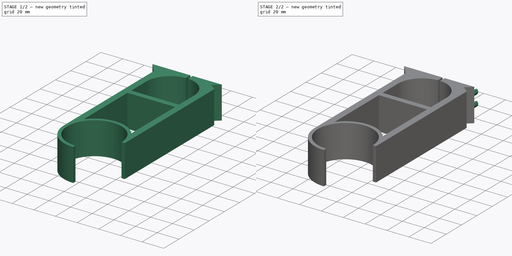
[diagram: build sequence overview — one tinted view per stage of 2, left to right]
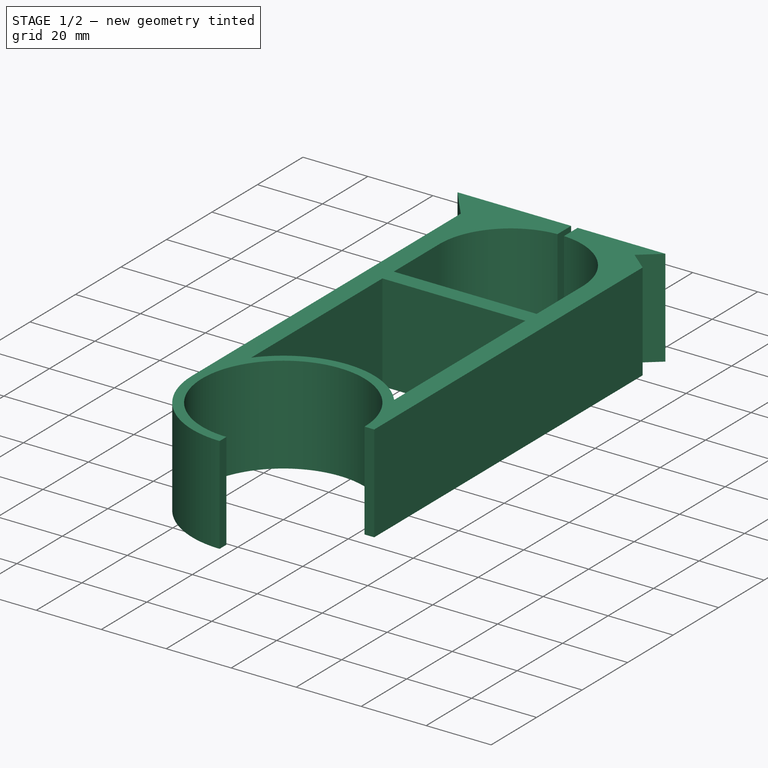
[diagram: stage 1 of 2 — iso view after this stage's code; geometry added in this stage tinted green]
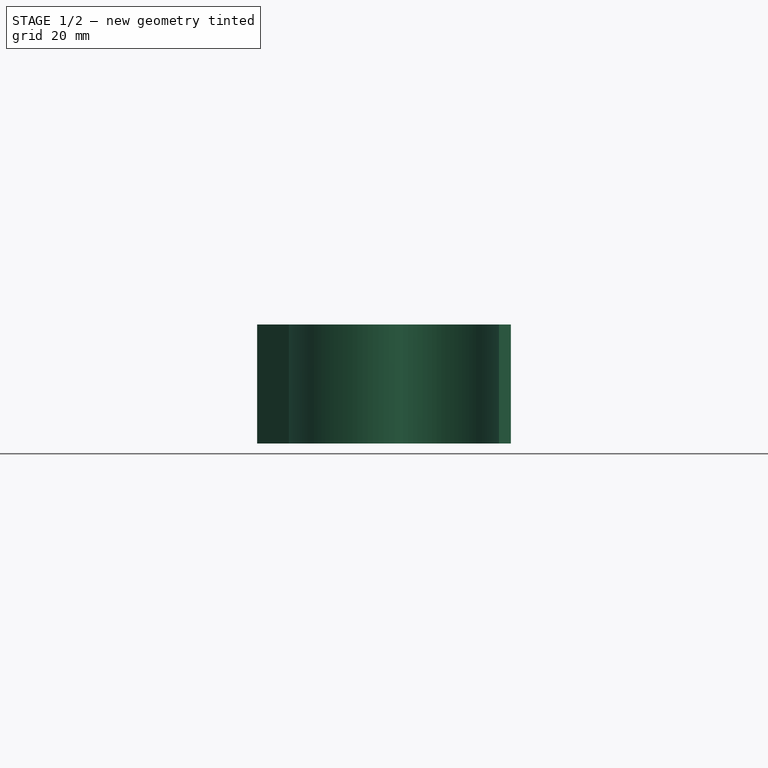
[diagram: stage 1 of 2 — front view after this stage's code; geometry added in this stage tinted green]
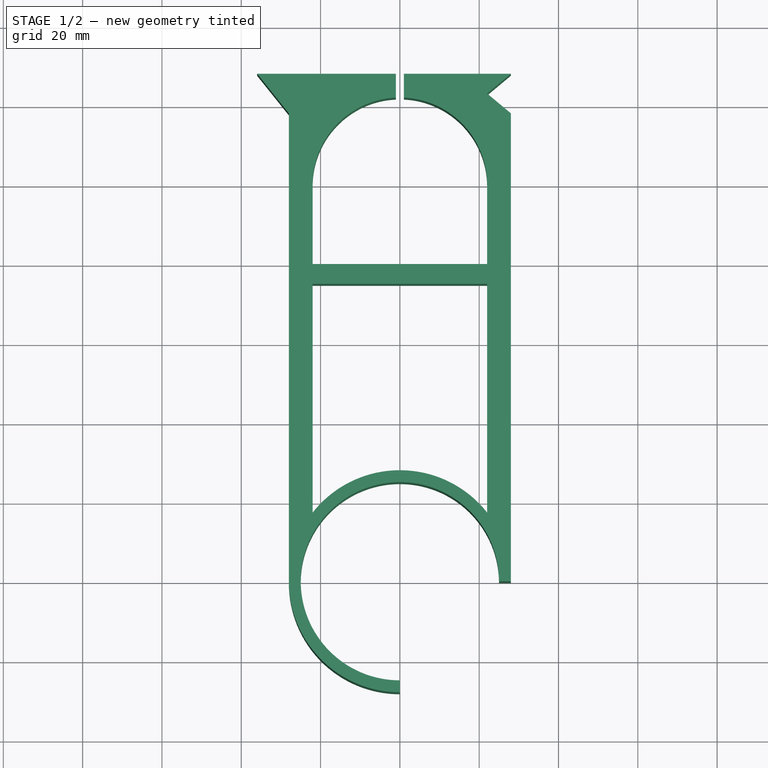
[diagram: stage 1 of 2 — top view after this stage's code; geometry added in this stage tinted green]
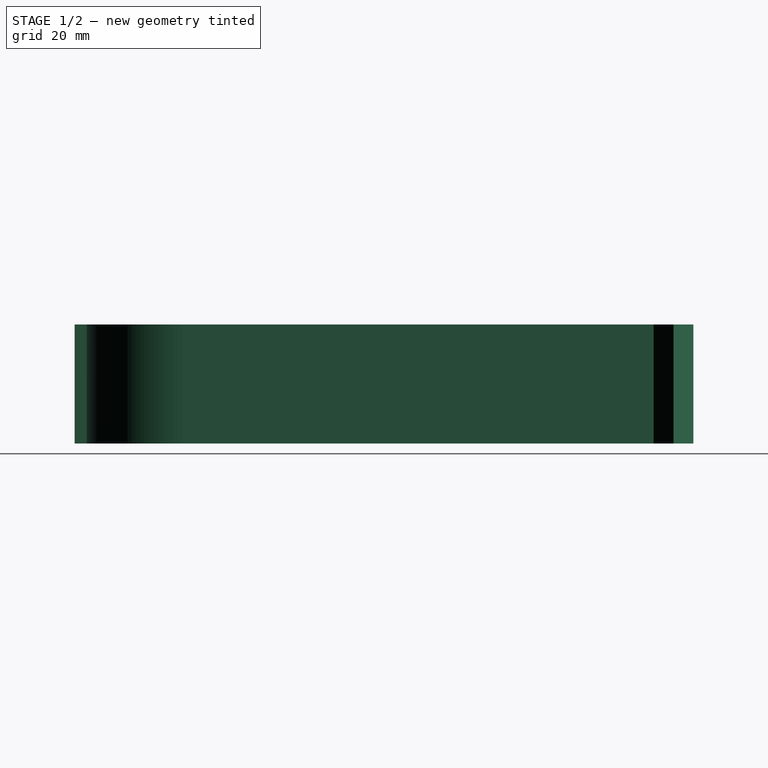
[diagram: stage 1 of 2 — right view after this stage's code; geometry added in this stage tinted green]
FCSTD DOCUMENT  (FreeCAD 0.20R29410 (Git))
Label: bikeBasketSupport
License: All rights reserved
LicenseURL: http://en.wikipedia.org/wiki/All_rights_reserved
objects: Sketcher::SketchObject×2, PartDesign::Pad×2, PartDesign::Body×1
note: 7 computed .brp shape members not serialized (recipe doc carries the construction recipe); baked Part::Feature solids carry a one-line shape summary decoded from their .brp

FEATURE [Sketcher::SketchObject] Sketch
  FullyConstrained = true
  MapMode = 5
  Support = -> [XY_Plane]
  sketch-geometry (24):
    g0: ArcOfCircle CenterX=0 CenterY=0 CenterZ=0 NormalX=0 NormalY=0 NormalZ=1 AngleXU=0 Radius=25 StartAngle=0 EndAngle=4.71239
    g1: ArcOfCircle CenterX=0 CenterY=0 CenterZ=0 NormalX=0 NormalY=0 NormalZ=1 AngleXU=0 Radius=28 StartAngle=0.666946 EndAngle=2.47465
    g2: LineSegment StartX=25 StartY=0 StartZ=0 EndX=28 EndY=0 EndZ=0
    g3: LineSegment StartX=-4.6e-15 StartY=-25 StartZ=0 EndX=-5.1e-15 EndY=-28 EndZ=0
    g4: LineSegment StartX=28 StartY=100 StartZ=0 EndX=28 EndY=0 EndZ=0
    g5: LineSegment StartX=22 StartY=100 StartZ=0 EndX=22 EndY=80 EndZ=0
    g6: LineSegment StartX=-28 StartY=100 StartZ=0 EndX=-28 EndY=1.41471e-05 EndZ=0
    g7: LineSegment StartX=-22 StartY=100 StartZ=0 EndX=-22 EndY=80 EndZ=0
    g8: ArcOfCircle CenterX=0 CenterY=0 CenterZ=0 NormalX=0 NormalY=0 NormalZ=1 AngleXU=0 Radius=28 StartAngle=3.14159 EndAngle=4.71239
    g9: ArcOfCircle CenterX=0 CenterY=100 CenterZ=0 NormalX=0 NormalY=0 NormalZ=1 AngleXU=0 Radius=22 StartAngle=0 EndAngle=1.52533
    g10: LineSegment StartX=-28 StartY=118 StartZ=0 EndX=-28 EndY=100 EndZ=0
    g11: LineSegment StartX=28 StartY=118 StartZ=0 EndX=28 EndY=100 EndZ=0
    g12: LineSegment StartX=-36 StartY=128 StartZ=0 EndX=-1 EndY=128 EndZ=0
    g13: LineSegment StartX=28 StartY=128 StartZ=0 EndX=22 EndY=123 EndZ=0
    g14: LineSegment StartX=22 StartY=123 StartZ=0 EndX=28 EndY=118 EndZ=0
    g15: LineSegment StartX=-36 StartY=128 StartZ=0 EndX=-28 EndY=118 EndZ=0
    g16: LineSegment StartX=-1 StartY=128 StartZ=0 EndX=-1 EndY=121.977 EndZ=0
    g17: LineSegment StartX=1 StartY=128 StartZ=0 EndX=1 EndY=121.977 EndZ=0
    g18: LineSegment StartX=1 StartY=128 StartZ=0 EndX=28 EndY=128 EndZ=0
    g19: ArcOfCircle CenterX=0 CenterY=100 CenterZ=0 NormalX=0 NormalY=0 NormalZ=1 AngleXU=0 Radius=22 StartAngle=1.61627 EndAngle=3.14159
    g20: LineSegment StartX=-22 StartY=75 StartZ=0 EndX=22 EndY=75 EndZ=0
    g21: LineSegment StartX=-22 StartY=80 StartZ=0 EndX=22 EndY=80 EndZ=0
    g22: LineSegment StartX=-22 StartY=75 StartZ=0 EndX=-22 EndY=17.3205 EndZ=0
    g23: LineSegment StartX=22 StartY=75 StartZ=0 EndX=22 EndY=17.3205 EndZ=0
  constraints (74):
    c: Coincident(g0,g-1)
    c: DistanceY(g0,g0) = 0
    c: DistanceX(g0,g0) = 0
    c: Radius(g0) = 25
    c: Coincident(g1,g0)
    c: DistanceY(g2,g0) = 0
    c: DistanceX(g8,g0) = 0
    c: Radius(g1) = 28
    c: Coincident(g2,g0)
    c: Coincident(g3,g8)
    c: Coincident(g3,g0)
    c: Coincident(g4,g2)
    c: Vertical(g4)
    c: Vertical(g5)
    c: DistanceY(g4,g4) = 100
    c: DistanceX(g0,g23) = 22
    c: Coincident(g1,g23)
    c: DistanceX(g0,g2) = 3
    c: Vertical(g6)
    c: Vertical(g7)
    c: DistanceY(g6,g6) = 100
    c: DistanceX(g6,g0) = 28
    c: DistanceX(g22,g0) = 22
    c: Equal(g1,g8)
    c: Coincident(g1,g22)
    c: Coincident(g8,g6)
    c: Coincident(g1,g8)
    c: DistanceY(g0,g9) = 100
    c: DistanceX(g0,g9) = 0
    c: Coincident(g19,g7)
    c: DistanceY(g9,g9) = 0
    c: Vertical(g10)
    c: Vertical(g11)
    c: Coincident(g11,g4)
    c: Coincident(g10,g6)
    c: DistanceY(g11,g11) = 18
    c: DistanceY(g7,g6) = 0
    c: DistanceY(g5,g4) = 0
    c: DistanceY(g10,g10) = 18
    c: Horizontal(g12)
    c: DistanceX(g12,g9) = 36
    c: DistanceX(g9,g18) = 28
    c: DistanceY(g9,g18) = 28
    c: Coincident(g14,g11)
    c: Coincident(g13,g18)
    c: Coincident(g13,g14)
    c: Coincident(g15,g12)
    c: Coincident(g15,g10)
    c: DistanceX(g13,g11) = 6
    c: DistanceY(g13,g18) = 5
    c: Vertical(g16)
    c: Vertical(g17)
    c: DistanceX(g9,g17) = 1
    c: DistanceX(g16,g9) = 1
    c: Coincident(g12,g16)
    c: Coincident(g18,g17)
    c: Equal(g9,g19)
    c: Coincident(g9,g17)
    c: Coincident(g19,g16)
    c: Coincident(g9,g19)
    c: Horizontal(g18)
    c: DistanceY(g9,g12) = 28
    c: Horizontal(g20)
    c: Horizontal(g21)
    c: DistanceY(g20,g9) = 25
    c: DistanceY(g21,g9) = 20
    c: Coincident(g7,g21)
    c: Coincident(g22,g20)
    c: Coincident(g5,g21)
    c: Coincident(g23,g20)
    c: Vertical(g23)
    c: Vertical(g22)
    c: DistanceX(g9,g5) = 22
    c: DistanceX(g7,g9) = 22
FEATURE [PartDesign::Pad] Pad
  Direction = (0,0,1)
  Length = 30
  Length2 = 10
  Profile = -> Sketch
  ReferenceAxis = -> Sketch [N_Axis]
  Type = 0
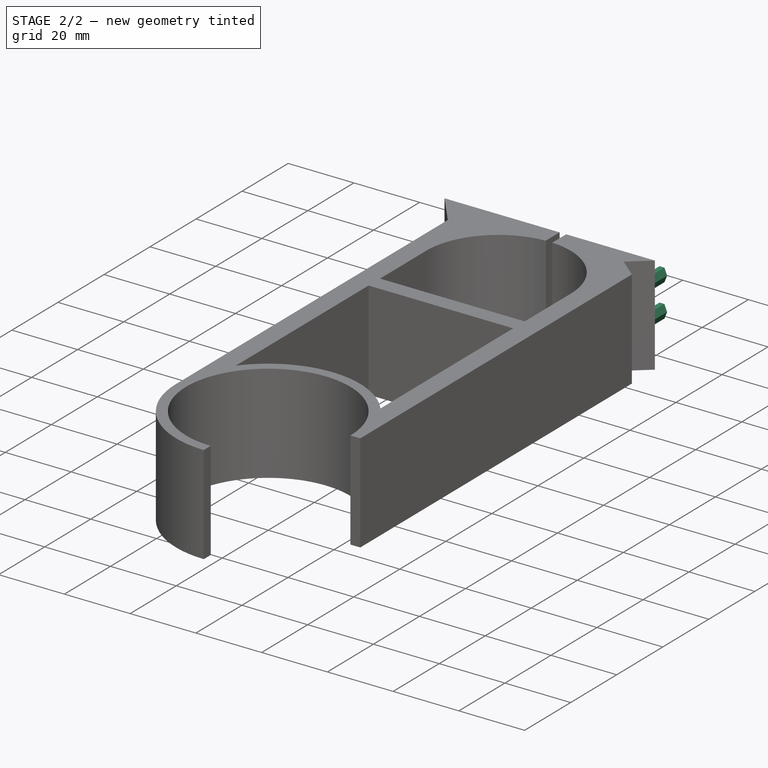
[diagram: stage 2 of 2 — iso view after this stage's code; geometry added in this stage tinted green]
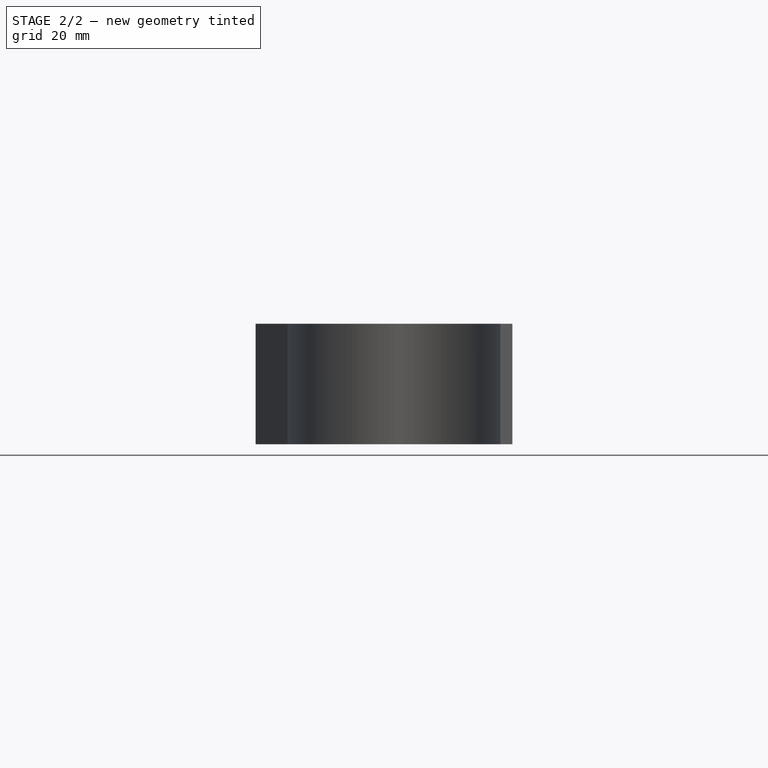
[diagram: stage 2 of 2 — front view after this stage's code; geometry added in this stage tinted green]
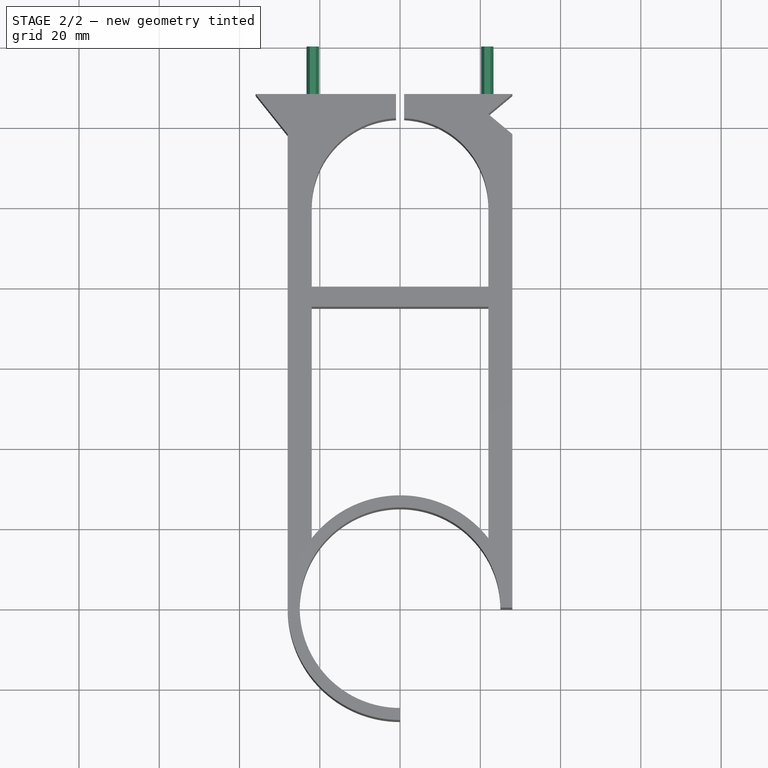
[diagram: stage 2 of 2 — top view after this stage's code; geometry added in this stage tinted green]
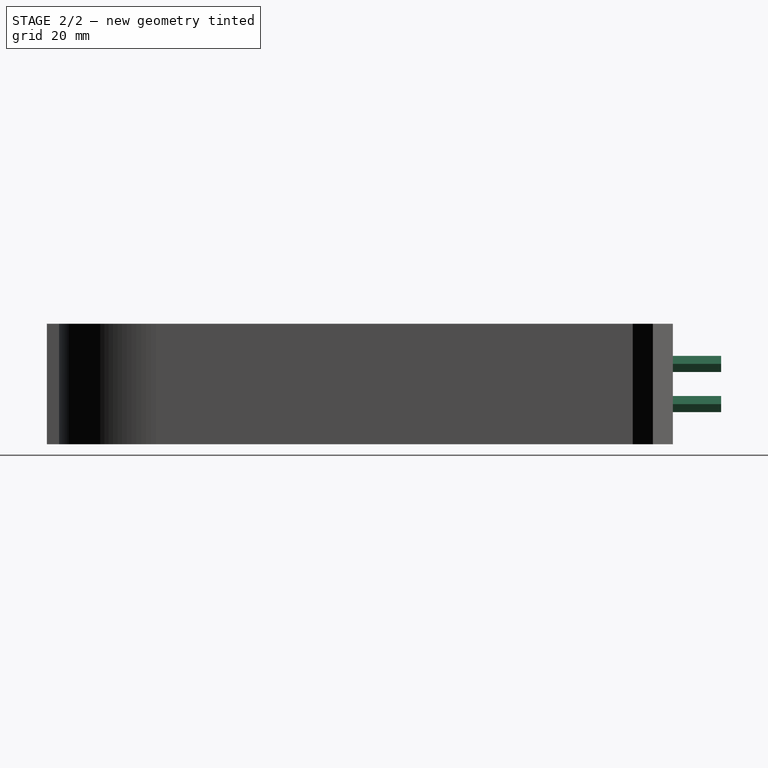
[diagram: stage 2 of 2 — right view after this stage's code; geometry added in this stage tinted green]
FEATURE [Sketcher::SketchObject] Sketch001
  FullyConstrained = true
  MapMode = 5
  Placement = pos=(0,128,0) rot=(0,0.707107,0.707107;3.14159rad)
  Support = -> [Pad]
  sketch-geometry (24):
    g0: LineSegment StartX=-22.5 StartY=12 StartZ=0 EndX=-23.3 EndY=10 EndZ=0
    g1: LineSegment StartX=-23.3 StartY=10 StartZ=0 EndX=-22.5 EndY=8 EndZ=0
    g2: LineSegment StartX=-22.5 StartY=8 StartZ=0 EndX=-21 EndY=8 EndZ=0
    g3: LineSegment StartX=-21 StartY=8 StartZ=0 EndX=-20.2 EndY=10 EndZ=0
    g4: LineSegment StartX=-20.2 StartY=10 StartZ=0 EndX=-21 EndY=12 EndZ=0
    g5: LineSegment StartX=-22.5 StartY=12 StartZ=0 EndX=-21 EndY=12 EndZ=0
    g6: LineSegment StartX=-22.5 StartY=22 StartZ=0 EndX=-23.3 EndY=20 EndZ=0
    g7: LineSegment StartX=-23.3 StartY=20 StartZ=0 EndX=-22.5 EndY=18 EndZ=0
    g8: LineSegment StartX=-22.5 StartY=18 StartZ=0 EndX=-21 EndY=18 EndZ=0
    g9: LineSegment StartX=-21 StartY=18 StartZ=0 EndX=-20.2 EndY=20 EndZ=0
    g10: LineSegment StartX=-20.2 StartY=20 StartZ=0 EndX=-21 EndY=22 EndZ=0
    g11: LineSegment StartX=-22.5 StartY=22 StartZ=0 EndX=-21 EndY=22 EndZ=0
    g12: LineSegment StartX=21 StartY=12 StartZ=0 EndX=20.2 EndY=10 EndZ=0
    g13: LineSegment StartX=20.2 StartY=10 StartZ=0 EndX=21 EndY=8 EndZ=0
    g14: LineSegment StartX=21 StartY=8 StartZ=0 EndX=22.5 EndY=8 EndZ=0
    g15: LineSegment StartX=22.5 StartY=8 StartZ=0 EndX=23.3 EndY=10 EndZ=0
    g16: LineSegment StartX=23.3 StartY=10 StartZ=0 EndX=22.5 EndY=12 EndZ=0
    g17: LineSegment StartX=21 StartY=12 StartZ=0 EndX=22.5 EndY=12 EndZ=0
    g18: LineSegment StartX=21 StartY=22 StartZ=0 EndX=20.2 EndY=20 EndZ=0
    g19: LineSegment StartX=20.2 StartY=20 StartZ=0 EndX=21 EndY=18 EndZ=0
    g20: LineSegment StartX=21 StartY=18 StartZ=0 EndX=22.5 EndY=18 EndZ=0
    g21: LineSegment StartX=22.5 StartY=18 StartZ=0 EndX=23.3 EndY=20 EndZ=0
    g22: LineSegment StartX=23.3 StartY=20 StartZ=0 EndX=22.5 EndY=22 EndZ=0
    g23: LineSegment StartX=21 StartY=22 StartZ=0 EndX=22.5 EndY=22 EndZ=0
  constraints (72):
    c: Horizontal(g5)
    c: Horizontal(g2)
    c: Coincident(g0,g5)
    c: Coincident(g5,g4)
    c: Coincident(g4,g3)
    c: Coincident(g3,g2)
    c: Coincident(g2,g1)
    c: Coincident(g1,g0)
    c: DistanceX(g0,g1) = 0
    c: DistanceX(g4,g2) = 0
    c: DistanceX(g5,g5) = 1.5
    c: DistanceY(g2,g4) = 4
    c: DistanceX(g4,g3) = 0.8
    c: DistanceX(g0,g1) = 0.8
    c: DistanceY(g0,g0) = 2
    c: DistanceY(g2,g3) = 2
    c: DistanceY(g-1,g2) = 8
    c: DistanceX(g2,g-1) = 21
    c: Horizontal(g11)
    c: Horizontal(g8)
    c: Coincident(g6,g11)
    c: Coincident(g11,g10)
    c: Coincident(g10,g9)
    c: Coincident(g9,g8)
    c: Coincident(g8,g7)
    c: Coincident(g7,g6)
    c: DistanceX(g6,g7) = 0
    c: DistanceX(g10,g8) = 0
    c: Equal(g5,g11) = 1.5
    c: DistanceY(g8,g10) = 4
    c: DistanceX(g10,g9) = 0.8
    c: DistanceX(g6,g7) = 0.8
    c: Equal(g0,g6) = 2
    c: DistanceY(g8,g9) = 2
    c: DistanceX(g8,g-1) = 21
    c: DistanceY(g-1,g8) = 18
    c: Horizontal(g17)
    c: Horizontal(g14)
    c: Coincident(g12,g17)
    c: Coincident(g17,g16)
    c: Coincident(g16,g15)
    c: Coincident(g15,g14)
    c: Coincident(g14,g13)
    c: Coincident(g13,g12)
    c: DistanceX(g12,g13) = 0
    c: DistanceX(g16,g14) = 0
    c: Equal(g5,g17) = 1.5
    c: DistanceY(g14,g16) = 4
    c: DistanceX(g16,g15) = 0.8
    c: DistanceX(g12,g13) = 0.8
    c: Equal(g0,g12) = 2
    c: DistanceY(g14,g15) = 2
    c: DistanceX(g-1,g13) = 21
    c: DistanceY(g-1,g13) = 8
    c: Horizontal(g23)
    c: Horizontal(g20)
    c: Coincident(g18,g23)
    c: Coincident(g23,g22)
    c: Coincident(g22,g21)
    c: Coincident(g21,g20)
    c: Coincident(g20,g19)
    c: Coincident(g19,g18)
    c: DistanceX(g18,g19) = 0
    c: DistanceX(g22,g20) = 0
    c: Equal(g5,g23) = 1.5
    c: DistanceY(g20,g22) = 4
    c: DistanceX(g22,g21) = 0.8
    c: DistanceX(g18,g19) = 0.8
    c: Equal(g0,g18) = 2
    c: DistanceY(g20,g21) = 2
    c: DistanceX(g-1,g19) = 21
    c: DistanceY(g-1,g19) = 18
FEATURE [PartDesign::Pad] Pad001
  BaseFeature = -> Pad
  Direction = (0,1,-2e-16)
  Length = 12
  Length2 = 10
  Profile = -> Sketch001
  ReferenceAxis = -> Sketch001 [N_Axis]
  Type = 0
FEATURE [PartDesign::Body] Body
  Group = -> [Sketch,Pad,Sketch001,Pad001]
  Origin = -> Origin
  Tip = -> Pad001
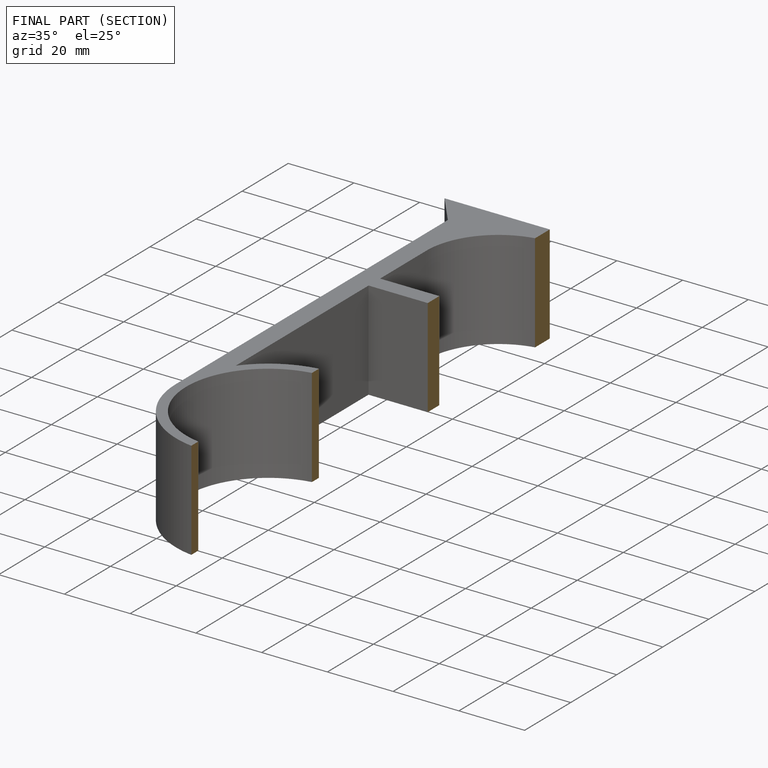
[diagram: finished part — half-section view (interior)]
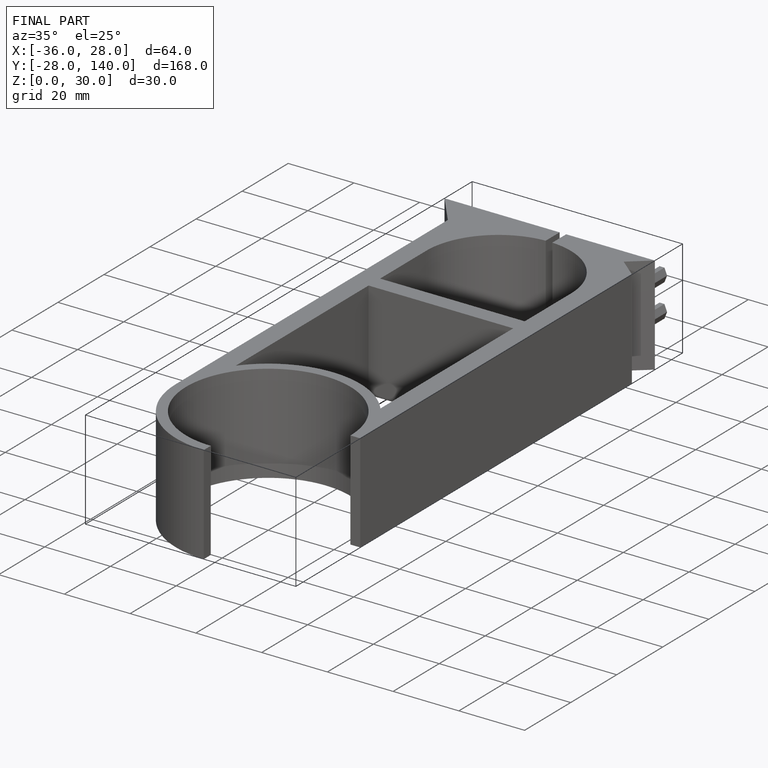
[diagram: finished part — iso view with bounding-box wireframe]
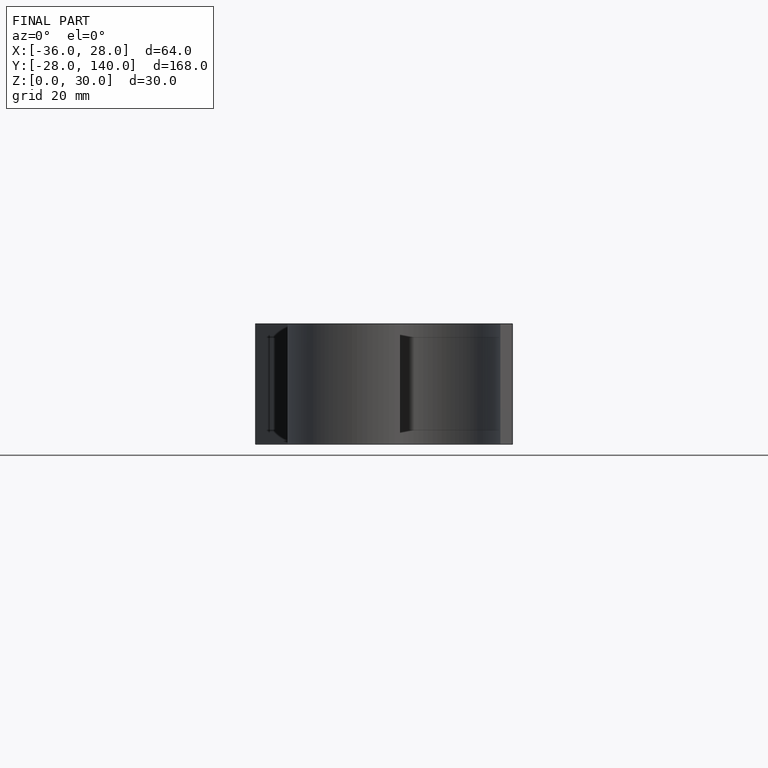
[diagram: finished part — front view with bounding-box wireframe]
